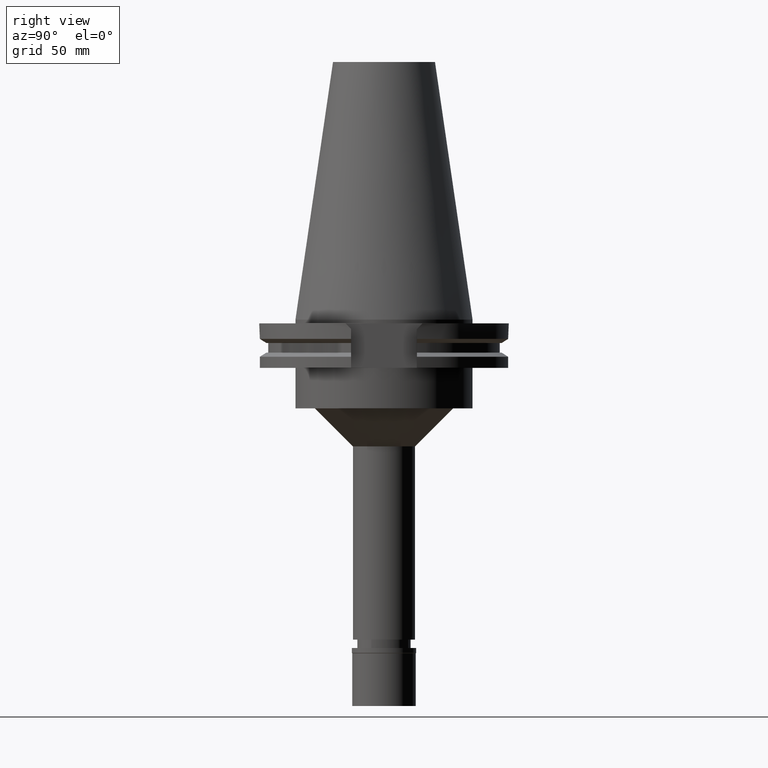
[diagram: clean part render]
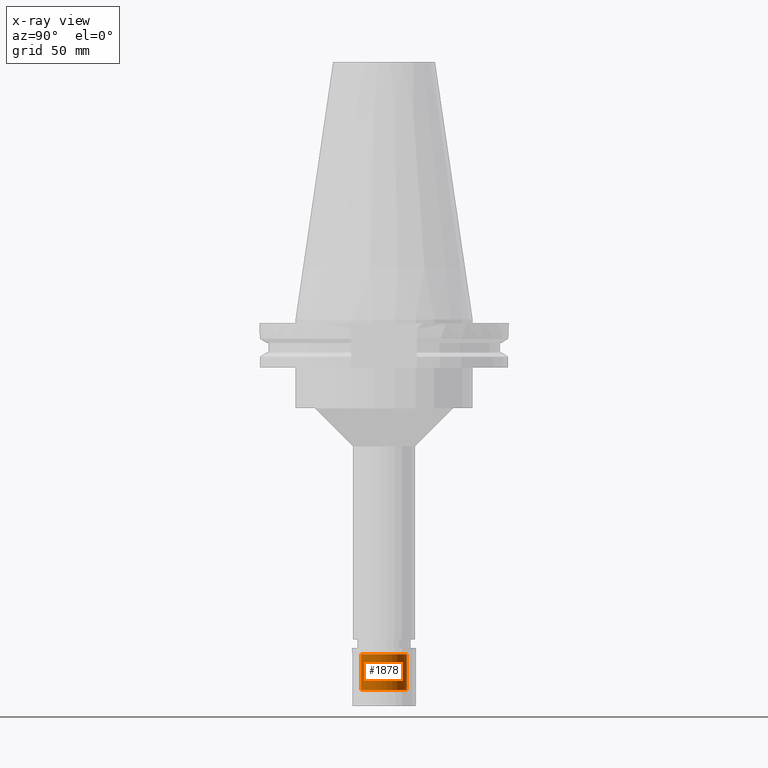
[diagram: x-ray — body ghosted, one internal face saturated and labeled with its STEP entity id]
A machine part, right view, then the same camera in x-ray: the body is ghosted and one INTERNAL B-rep face — a face not visible from any outside direction — is saturated and labeled: STEP entity #1878.
In plain terms, the highlighted cylindrical surface (edge-blend (fillet) strip) has radius 9 mm, axis along (0, 0, -1).
Its self-contained STEP definition (entity closure, byte-faithful):
#203 = CARTESIAN_POINT ( 'NONE',  ( 0.0000000000000000000, -9.000000000000000000, -16.69999999999999929 ) ) ;
#252 = VERTEX_POINT ( 'NONE', #1455 ) ;
#292 = DIRECTION ( 'NONE',  ( 0.0000000000000000000, 1.000000000000000000, 0.0000000000000000000 ) ) ;
#353 = VECTOR ( 'NONE', #2887, 1000.000000000000000 ) ;
#429 = FACE_OUTER_BOUND ( 'NONE', #2078, .T. ) ;
#477 = VERTEX_POINT ( 'NONE', #2107 ) ;
#500 = DIRECTION ( 'NONE',  ( 0.0000000000000000000, 0.0000000000000000000, -1.000000000000000000 ) ) ;
#583 = CIRCLE ( 'NONE', #631, 9.000000000000000000 ) ;
#631 = AXIS2_PLACEMENT_3D ( 'NONE', #1848, #1280, #2865 ) ;
#725 = AXIS2_PLACEMENT_3D ( 'NONE', #763, #1798, #292 ) ;
#750 = CYLINDRICAL_SURFACE ( 'NONE', #964, 9.000000000000000000 ) ;
#763 = CARTESIAN_POINT ( 'NONE',  ( 0.0000000000000000000, 0.0000000000000000000, -16.69999999999999929 ) ) ;
#964 = AXIS2_PLACEMENT_3D ( 'NONE', #2803, #500, #1468 ) ;
#1006 = LINE ( 'NONE', #2718, #2134 ) ;
#1037 = ORIENTED_EDGE ( 'NONE', *, *, #2581, .T. ) ;
#1110 = LINE ( 'NONE', #2642, #353 ) ;
#1173 = VERTEX_POINT ( 'NONE', #3205 ) ;
#1208 = ORIENTED_EDGE ( 'NONE', *, *, #2456, .T. ) ;
#1280 = DIRECTION ( 'NONE',  ( 0.0000000000000000000, 0.0000000000000000000, 1.000000000000000000 ) ) ;
#1342 = DIRECTION ( 'NONE',  ( 0.0000000000000000000, 0.0000000000000000000, 1.000000000000000000 ) ) ;
#1455 = CARTESIAN_POINT ( 'NONE',  ( 0.0000000000000000000, 9.000000000000000000, -2.500000000000000000 ) ) ;
#1468 = DIRECTION ( 'NONE',  ( 0.0000000000000000000, -1.000000000000000000, 0.0000000000000000000 ) ) ;
#1798 = DIRECTION ( 'NONE',  ( 0.0000000000000000000, 0.0000000000000000000, -1.000000000000000000 ) ) ;
#1848 = CARTESIAN_POINT ( 'NONE',  ( 0.0000000000000000000, 0.0000000000000000000, -2.500000000000000000 ) ) ;
#1878 = ADVANCED_FACE ( 'NONE', ( #429 ), #750, .F. ) ;
#2019 = EDGE_CURVE ( 'NONE', #477, #252, #583, .T. ) ;
#2078 = EDGE_LOOP ( 'NONE', ( #1037, #1208, #3006, #2935 ) ) ;
#2107 = CARTESIAN_POINT ( 'NONE',  ( 0.0000000000000000000, -9.000000000000000000, -2.500000000000000000 ) ) ;
#2134 = VECTOR ( 'NONE', #1342, 1000.000000000000000 ) ;
#2298 = CIRCLE ( 'NONE', #725, 9.000000000000000000 ) ;
#2456 = EDGE_CURVE ( 'NONE', #3241, #477, #1006, .T. ) ;
#2581 = EDGE_CURVE ( 'NONE', #1173, #3241, #2298, .T. ) ;
#2642 = CARTESIAN_POINT ( 'NONE',  ( 0.0000000000000000000, 9.000000000000000000, -16.69999999999999929 ) ) ;
#2718 = CARTESIAN_POINT ( 'NONE',  ( 0.0000000000000000000, -9.000000000000000000, -16.69999999999999929 ) ) ;
#2803 = CARTESIAN_POINT ( 'NONE',  ( 0.0000000000000000000, 0.0000000000000000000, 0.0000000000000000000 ) ) ;
#2865 = DIRECTION ( 'NONE',  ( 0.0000000000000000000, -1.000000000000000000, 0.0000000000000000000 ) ) ;
#2887 = DIRECTION ( 'NONE',  ( 0.0000000000000000000, 0.0000000000000000000, 1.000000000000000000 ) ) ;
#2935 = ORIENTED_EDGE ( 'NONE', *, *, #3018, .F. ) ;
#3006 = ORIENTED_EDGE ( 'NONE', *, *, #2019, .T. ) ;
#3018 = EDGE_CURVE ( 'NONE', #1173, #252, #1110, .T. ) ;
#3205 = CARTESIAN_POINT ( 'NONE',  ( 0.0000000000000000000, 9.000000000000000000, -16.69999999999999929 ) ) ;
#3241 = VERTEX_POINT ( 'NONE', #203 ) ;